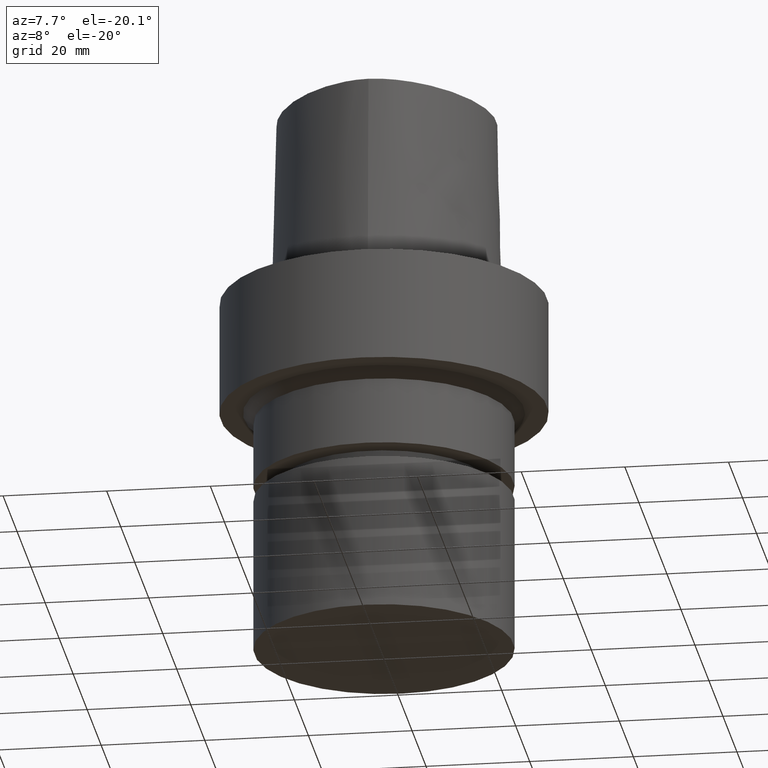
[diagram: clean part render]
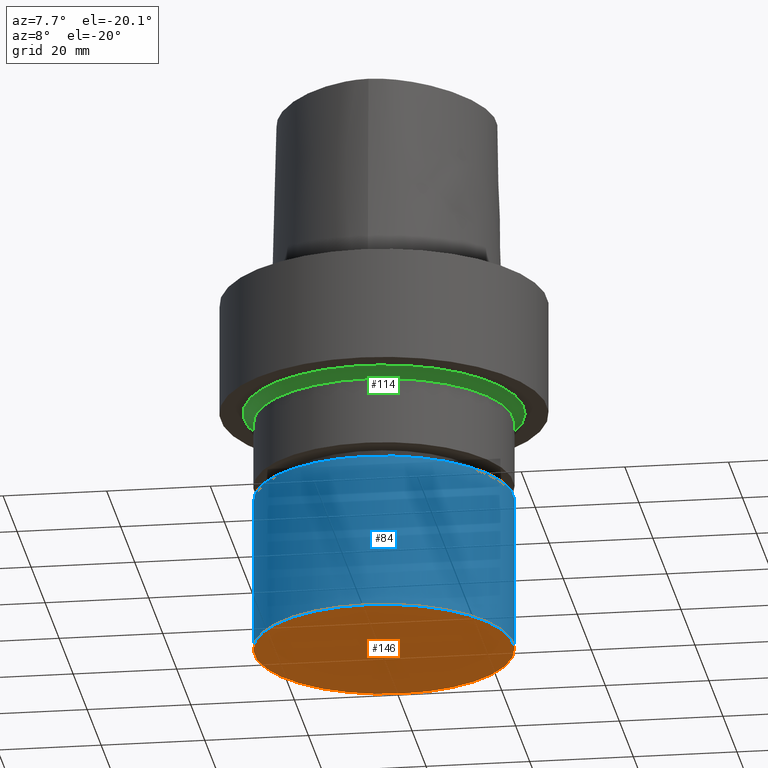
[diagram: same view with three faces highlighted in distinct colors, each labeled with its STEP entity id]
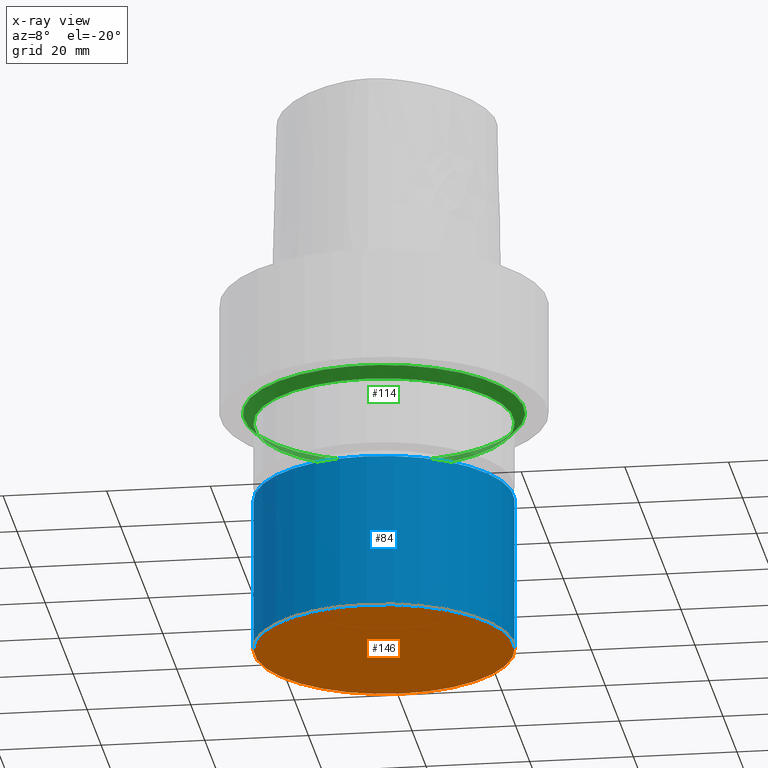
[diagram: x-ray of the same camera — body ghosted, the three highlighted faces saturated]
A machine part, auxiliary view with three faces highlighted in distinct colors.
The next image is the same camera in x-ray (body ghosted, the three faces saturated) — at least one of them is partly hidden behind the body in this view.
Their STEP definitions:

[orange] entity #146 — the highlighted planar face has unit normal (0, 0, -1).
#75=EDGE_CURVE('Unnamed[1]',#195,#195,#196,.T.);
#146=ADVANCED_FACE('Unnamed[1]',(#299),#300,.T.);
#195=VERTEX_POINT('',#354);
#196=CIRCLE('',#355,25.0);
#299=FACE_OUTER_BOUND('',#674,.T.);
#300=PLANE('',#675);
#354=CARTESIAN_POINT('',(4.28626379701574E-015,25.0,-70.0));
#355=AXIS2_PLACEMENT_3D('',#740,#741,#742);
#674=EDGE_LOOP('',(#846));
#675=AXIS2_PLACEMENT_3D('',#847,#848,#849);
#740=CARTESIAN_POINT('',(4.28626379701574E-015,8.57252759403147E-015,-70.0));
#741=DIRECTION('',(6.12323399573677E-017,1.22464679914735E-016,-1.0));
#742=DIRECTION('',(-1.23259516440783E-032,1.0,1.22464679914735E-016));
#846=ORIENTED_EDGE('',*,*,#75,.T.);
#847=CARTESIAN_POINT('',(4.28626379701574E-015,12.5,-70.0));
#848=DIRECTION('',(6.12323399573677E-017,1.22464679914735E-016,-1.0));
#849=DIRECTION('',(-1.23259516440783E-032,1.0,1.22464679914735E-016));

[blue] entity #84 — the highlighted cylindrical surface (bore or boss wall) has radius 25 mm, axis along (0, 0, -1).
#73=EDGE_CURVE('Unnamed[1]',#192,#192,#193,.T.);
#75=EDGE_CURVE('Unnamed[1]',#195,#195,#196,.T.);
#84=ADVANCED_FACE('Unnamed[1]',(#208,#209),#210,.T.);
#192=VERTEX_POINT('',#350);
#193=CIRCLE('',#351,25.0);
#195=VERTEX_POINT('',#354);
#196=CIRCLE('',#355,25.0);
#208=FACE_BOUND('',#370,.T.);
#209=FACE_BOUND('',#371,.T.);
#210=CYLINDRICAL_SURFACE('',#372,25.0);
#350=CARTESIAN_POINT('',(2.43704713030323E-015,25.0,-39.8));
#351=AXIS2_PLACEMENT_3D('',#737,#738,#739);
#354=CARTESIAN_POINT('',(4.28626379701574E-015,25.0,-70.0));
#355=AXIS2_PLACEMENT_3D('',#740,#741,#742);
#370=EDGE_LOOP('',(#757));
#371=EDGE_LOOP('',(#758));
#372=AXIS2_PLACEMENT_3D('',#759,#760,#761);
#737=CARTESIAN_POINT('',(2.43704713030323E-015,4.87409426060646E-015,-39.8));
#738=DIRECTION('',(6.12323399573677E-017,1.22464679914735E-016,-1.0));
#739=DIRECTION('',(-1.23259516440783E-032,1.0,1.22464679914735E-016));
#740=CARTESIAN_POINT('',(4.28626379701574E-015,8.57252759403147E-015,-70.0));
#741=DIRECTION('',(6.12323399573677E-017,1.22464679914735E-016,-1.0));
#742=DIRECTION('',(-1.23259516440783E-032,1.0,1.22464679914735E-016));
#757=ORIENTED_EDGE('',*,*,#75,.F.);
#758=ORIENTED_EDGE('',*,*,#73,.T.);
#759=CARTESIAN_POINT('',(3.36165546365948E-015,6.72331092731897E-015,-54.9));
#760=DIRECTION('',(6.12323399573677E-017,1.22464679914735E-016,-1.0));
#761=DIRECTION('',(-1.23259516440783E-032,1.0,1.22464679914735E-016));

[green] entity #114 — the highlighted conical surface has half-angle 45 deg.
#114=ADVANCED_FACE('Unnamed[1]',(#253,#254),#255,.T.);
#133=EDGE_CURVE('Unnamed[1]',#281,#281,#282,.T.);
#143=EDGE_CURVE('Unnamed[1]',#295,#295,#296,.T.);
#253=FACE_BOUND('',#516,.T.);
#254=FACE_BOUND('',#517,.T.);
#255=CONICAL_SURFACE('',#518,26.0,0.785398163397585);
#281=VERTEX_POINT('',#650);
#282=CIRCLE('',#651,25.0);
#295=VERTEX_POINT('',#669);
#296=CIRCLE('',#670,27.0);
#516=EDGE_LOOP('',(#798));
#517=EDGE_LOOP('',(#799));
#518=AXIS2_PLACEMENT_3D('',#800,#801,#802);
#650=CARTESIAN_POINT('',(1.46957615897682E-015,25.0,-24.0));
#651=AXIS2_PLACEMENT_3D('',#827,#828,#829);
#669=CARTESIAN_POINT('',(1.34711147906212E-015,27.0,-22.0000000000005));
#670=AXIS2_PLACEMENT_3D('',#842,#843,#844);
#798=ORIENTED_EDGE('',*,*,#133,.F.);
#799=ORIENTED_EDGE('',*,*,#143,.T.);
#800=CARTESIAN_POINT('',(1.40834381901947E-015,2.81668763803894E-015,-23.0000000000003));
#801=DIRECTION('',(-6.12323399573677E-017,-1.22464679914735E-016,1.0));
#802=DIRECTION('',(-1.23259516440783E-032,1.0,1.22464679914735E-016));
#827=CARTESIAN_POINT('',(1.46957615897682E-015,2.93915231795365E-015,-24.0));
#828=DIRECTION('',(6.12323399573677E-017,1.22464679914735E-016,-1.0));
#829=DIRECTION('',(-1.23259516440783E-032,1.0,1.22464679914735E-016));
#842=CARTESIAN_POINT('',(1.34711147906212E-015,2.69422295812424E-015,-22.0000000000005));
#843=DIRECTION('',(6.12323399573677E-017,1.22464679914735E-016,-1.0));
#844=DIRECTION('',(-1.23259516440783E-032,1.0,1.22464679914735E-016));